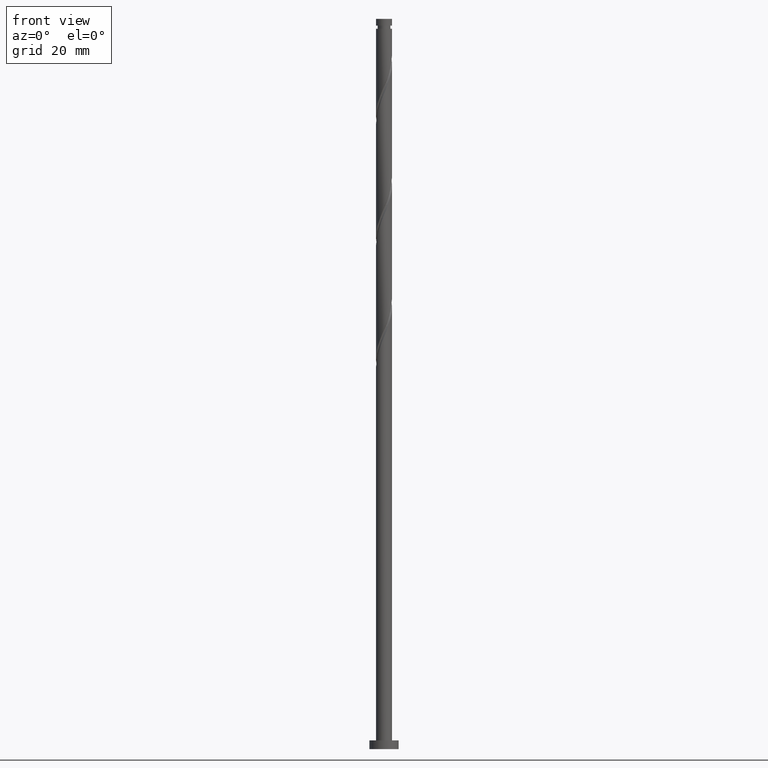
[diagram: clean part render]
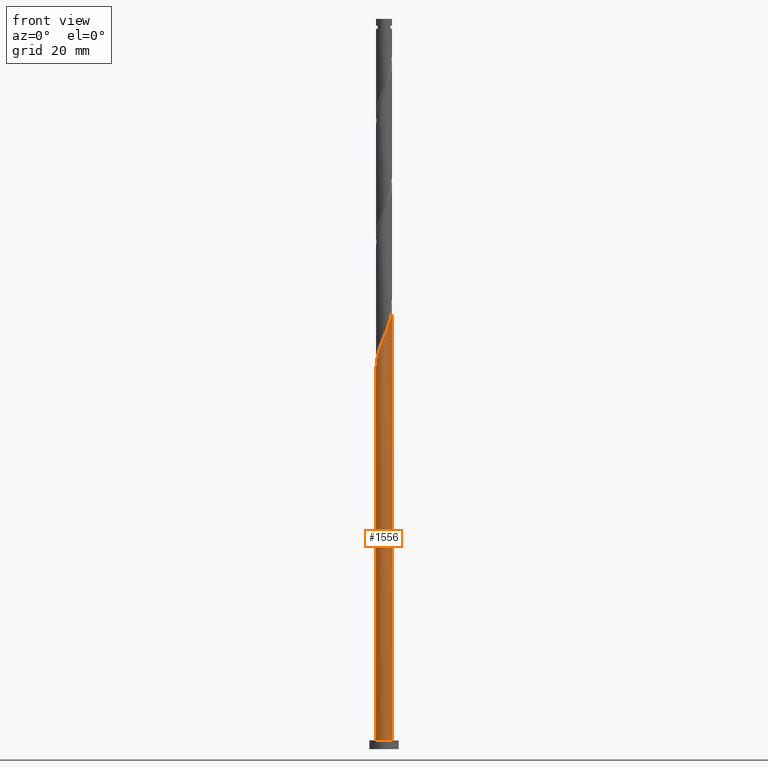
[diagram: same view with one face highlighted and labeled with its STEP entity id]
A machine part, front view. The second image highlights one B-rep face of the part: STEP entity #1556.
In plain terms, the highlighted cylindrical surface (edge-blend (fillet) strip) has radius 2.75 mm, axis along (-0, -0, -1).
Its self-contained STEP definition (entity closure, byte-faithful):
#7 = CIRCLE ( 'NONE', #1312, 2.750000000000000000 ) ;
#72 = CARTESIAN_POINT ( 'NONE',  ( -2.750000000000003553, 5.010239408650972167E-15, 130.6846427744859795 ) ) ;
#81 = CARTESIAN_POINT ( 'NONE',  ( 2.750000000000004441, 2.273302657059545426E-15, 151.5179761078192939 ) ) ;
#101 = CARTESIAN_POINT ( 'NONE',  ( -2.325813699778032095, -1.467341348809079626, 134.4164108042240287 ) ) ;
#119 = VERTEX_POINT ( 'NONE', #1032 ) ;
#127 = EDGE_CURVE ( 'NONE', #1231, #968, #1468, .T. ) ;
#130 = VECTOR ( 'NONE', #1208, 1000.000000000000000 ) ;
#137 = LINE ( 'NONE', #1235, #875 ) ;
#190 = EDGE_CURVE ( 'NONE', #902, #119, #137, .T. ) ;
#198 = DIRECTION ( 'NONE',  ( 0.000000000000000000, 0.000000000000000000, 1.000000000000000000 ) ) ;
#214 = CARTESIAN_POINT ( 'NONE',  ( -0.1136145144797522794, -2.747652041671134082, 140.8266672144803806 ) ) ;
#218 = AXIS2_PLACEMENT_3D ( 'NONE', #351, #1425, #1014 ) ;
#223 = CARTESIAN_POINT ( 'NONE',  ( -1.666497818918486251, -2.212867192295496555, 136.8202569580701891 ) ) ;
#232 = CARTESIAN_POINT ( 'NONE',  ( -1.377498228925706947, -2.380125759136808128, 137.6215390093522046 ) ) ;
#239 = CARTESIAN_POINT ( 'NONE',  ( 0.5472430904086433845, -2.695000000000004725, 142.4292313170445823 ) ) ;
#251 = CARTESIAN_POINT ( 'NONE',  ( -2.609387550283738033, -0.8680994254256000353, 132.8138467016599407 ) ) ;
#351 = CARTESIAN_POINT ( 'NONE',  ( 0.000000000000000000, 0.000000000000000000, 250.0000000000000000 ) ) ;
#354 = ORIENTED_EDGE ( 'NONE', *, *, #127, .F. ) ;
#361 = CARTESIAN_POINT ( 'NONE',  ( -2.750000000000004441, -0.1093761084261107158, 130.9488136901189534 ) ) ;
#378 = CARTESIAN_POINT ( 'NONE',  ( 2.713923848296361019, -0.4439789923501908930, 150.4420518298650791 ) ) ;
#395 = CARTESIAN_POINT ( 'NONE',  ( -2.741313281104781119, -0.2184067188494077938, 131.2112825990958527 ) ) ;
#418 = CARTESIAN_POINT ( 'NONE',  ( 2.750000000000003997, 2.273302657059545426E-15, 151.5179761078192939 ) ) ;
#430 = DIRECTION ( 'NONE',  ( -0.000000000000000000, -0.000000000000000000, -1.000000000000000000 ) ) ;
#520 = CARTESIAN_POINT ( 'NONE',  ( -0.7678692567585404527, -2.640620533989142871, 139.2241031119163495 ) ) ;
#542 = CARTESIAN_POINT ( 'NONE',  ( 2.750000000000003553, -0.2234552059768777077, 150.9782753704709819 ) ) ;
#650 = CARTESIAN_POINT ( 'NONE',  ( 2.528811026136768447, -1.080562258312370183, 148.8394877273009342 ) ) ;
#676 = CARTESIAN_POINT ( 'NONE',  ( 1.176296916030185935, -2.485724354255294255, 144.0317954196086134 ) ) ;
#774 = CARTESIAN_POINT ( 'NONE',  ( 2.397607013737355963, -1.387615508300216627, 148.0382056760188902 ) ) ;
#806 = CARTESIAN_POINT ( 'NONE',  ( 1.478118496867736553, -2.342896049852680296, 144.8330774708906290 ) ) ;
#875 = VECTOR ( 'NONE', #430, 1000.000000000000000 ) ;
#902 = VERTEX_POINT ( 'NONE', #1315 ) ;
#917 = CARTESIAN_POINT ( 'NONE',  ( 0.2200108456246498978, -2.761447341342100348, 141.6279492657624530 ) ) ;
#925 = CARTESIAN_POINT ( 'NONE',  ( -1.088498638932926976, -2.547384325978117925, 138.4228210606342770 ) ) ;
#950 = EDGE_CURVE ( 'NONE', #902, #1231, #1124, .T. ) ;
#961 = CARTESIAN_POINT ( 'NONE',  ( 2.750000000000000000, 3.367778697655221012E-16, 3.000000000000000000 ) ) ;
#968 = VERTEX_POINT ( 'NONE', #961 ) ;
#1014 = DIRECTION ( 'NONE',  ( -1.000000000000000000, 0.000000000000000000, 0.000000000000000000 ) ) ;
#1029 = CARTESIAN_POINT ( 'NONE',  ( 0.000000000000000000, 0.000000000000000000, 3.000000000000000000 ) ) ;
#1032 = CARTESIAN_POINT ( 'NONE',  ( -2.750000000000000000, 0.000000000000000000, 3.000000000000000000 ) ) ;
#1124 =( BOUNDED_CURVE ( )  B_SPLINE_CURVE ( 2, ( #72, #361, #395, #1498, #251, #1192, #101, #1228, #1505, #223, #232, #925, #520, #1475, #214, #917, #239, #1376, #676, #806, #1669, #1216, #1657, #774, #650, #1805, #378, #542, #81 ),
 .UNSPECIFIED., .F., .T. ) 
 B_SPLINE_CURVE_WITH_KNOTS ( ( 3, 2, 2, 2, 2, 2, 2, 2, 2, 2, 2, 2, 2, 2, 3 ),
 ( 0.05452716259738321636, 0.05769230769230770939, 0.06730769230769229061, 0.07692307692307687184, 0.08653846153846156408, 0.09615384615384614531, 0.1057692307692307265, 0.1153846153846154188, 0.1250000000000000000, 0.1346153846153845812, 0.1442307692307692735, 0.1538461538461538547, 0.1634615384615384359, 0.1730769230769231282, 0.1795271625973832164 ),
 .UNSPECIFIED. ) 
 CURVE ( )  GEOMETRIC_REPRESENTATION_ITEM ( )  RATIONAL_B_SPLINE_CURVE ( ( 0.9061636035682953949, 0.9069090390690839332, 0.9090909090909405910, 0.9024626128164440209, 0.9090909090909405910, 0.9024626128164440209, 0.9090909090909405910, 0.9024626128164440209, 0.9090909090909405910, 0.9024626128164440209, 0.9090909090909405910, 0.9024626128164440209, 0.9090909090909405910, 0.9024626128164440209, 0.9090909090909405910, 0.9024626128164440209, 0.9090909090909405910, 0.9024626128164440209, 0.9090909090909405910, 0.9024626128164440209, 0.9090909090909405910, 0.9024626128164440209, 0.9090909090909405910, 0.9024626128164440209, 0.9090909090909405910, 0.9024626128164440209, 0.9090909090909405910, 0.9046444828383006787, 0.9061636035682953949 ) ) 
 REPRESENTATION_ITEM ( '' )  );
#1160 = CYLINDRICAL_SURFACE ( 'NONE', #218, 2.750000000000000000 ) ;
#1164 = ORIENTED_EDGE ( 'NONE', *, *, #1414, .T. ) ;
#1192 = CARTESIAN_POINT ( 'NONE',  ( -2.503981196414456711, -1.184936436776527824, 133.6151287529419562 ) ) ;
#1194 = CARTESIAN_POINT ( 'NONE',  ( 2.750000000000000000, 3.367778697655221012E-16, 250.0000000000000000 ) ) ;
#1208 = DIRECTION ( 'NONE',  ( -0.000000000000000000, -0.000000000000000000, -1.000000000000000000 ) ) ;
#1216 = CARTESIAN_POINT ( 'NONE',  ( 1.995858784247013684, -1.921078838710650327, 146.4356415734548023 ) ) ;
#1228 = CARTESIAN_POINT ( 'NONE',  ( -2.147646203141606591, -1.749746260841631651, 135.2176928555060442 ) ) ;
#1231 = VERTEX_POINT ( 'NONE', #418 ) ;
#1235 = CARTESIAN_POINT ( 'NONE',  ( -2.750000000000000000, 0.000000000000000000, 250.0000000000000000 ) ) ;
#1268 = EDGE_LOOP ( 'NONE', ( #354, #1646, #1637, #1164 ) ) ;
#1312 = AXIS2_PLACEMENT_3D ( 'NONE', #1029, #198, #1756 ) ;
#1315 = CARTESIAN_POINT ( 'NONE',  ( -2.750000000000003553, 5.010239408650972167E-15, 130.6846427744859795 ) ) ;
#1376 = CARTESIAN_POINT ( 'NONE',  ( 0.8744753351926358720, -2.628552658657907770, 143.2305133683265694 ) ) ;
#1414 = EDGE_CURVE ( 'NONE', #119, #968, #7, .T. ) ;
#1425 = DIRECTION ( 'NONE',  ( -0.000000000000000000, -0.000000000000000000, -1.000000000000000000 ) ) ;
#1468 = LINE ( 'NONE', #1194, #130 ) ;
#1475 = CARTESIAN_POINT ( 'NONE',  ( -0.4472398745841543177, -2.733856742000169149, 140.0253851631983366 ) ) ;
#1498 = CARTESIAN_POINT ( 'NONE',  ( -2.714793904153019355, -0.5512624140746725798, 132.0125646503778967 ) ) ;
#1505 = CARTESIAN_POINT ( 'NONE',  ( -1.907072011030046310, -1.981306726568564658, 136.0189749067881451 ) ) ;
#1556 = ADVANCED_FACE ( 'NONE', ( #1617 ), #1160, .T. ) ;
#1617 = FACE_OUTER_BOUND ( 'NONE', #1268, .T. ) ;
#1637 = ORIENTED_EDGE ( 'NONE', *, *, #190, .T. ) ;
#1646 = ORIENTED_EDGE ( 'NONE', *, *, #950, .F. ) ;
#1657 = CARTESIAN_POINT ( 'NONE',  ( 2.196732898992184158, -1.654347173505433144, 147.2369236247368463 ) ) ;
#1669 = CARTESIAN_POINT ( 'NONE',  ( 1.736988640557375785, -2.131987444281664867, 145.6343595221727298 ) ) ;
#1756 = DIRECTION ( 'NONE',  ( 1.000000000000000000, 0.000000000000000000, 0.000000000000000000 ) ) ;
#1805 = CARTESIAN_POINT ( 'NONE',  ( 2.660015038536180043, -0.7735090083245254045, 149.6407697785829498 ) ) ;